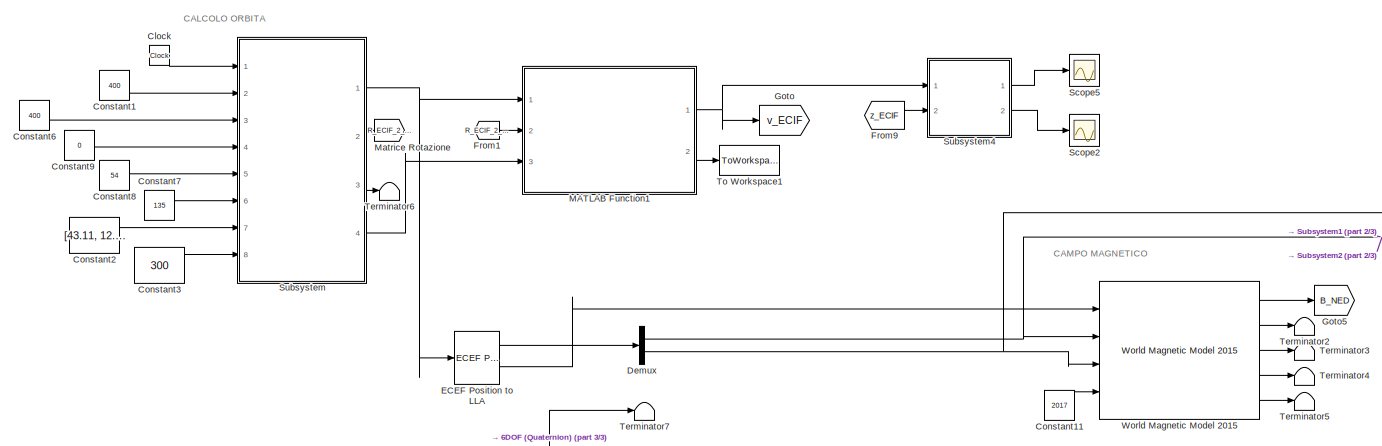
[diagram: root canvas - part 1/3, top center region]
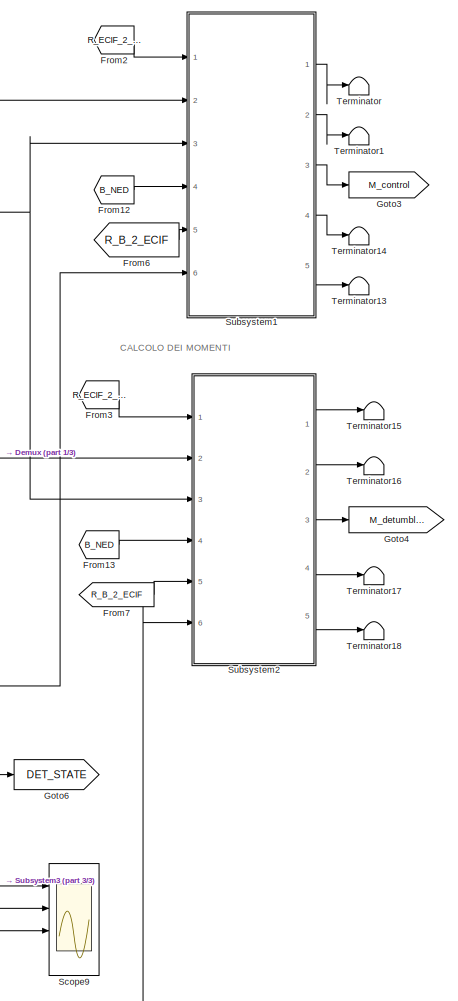
[diagram: root canvas - part 2/3, right side, full height]
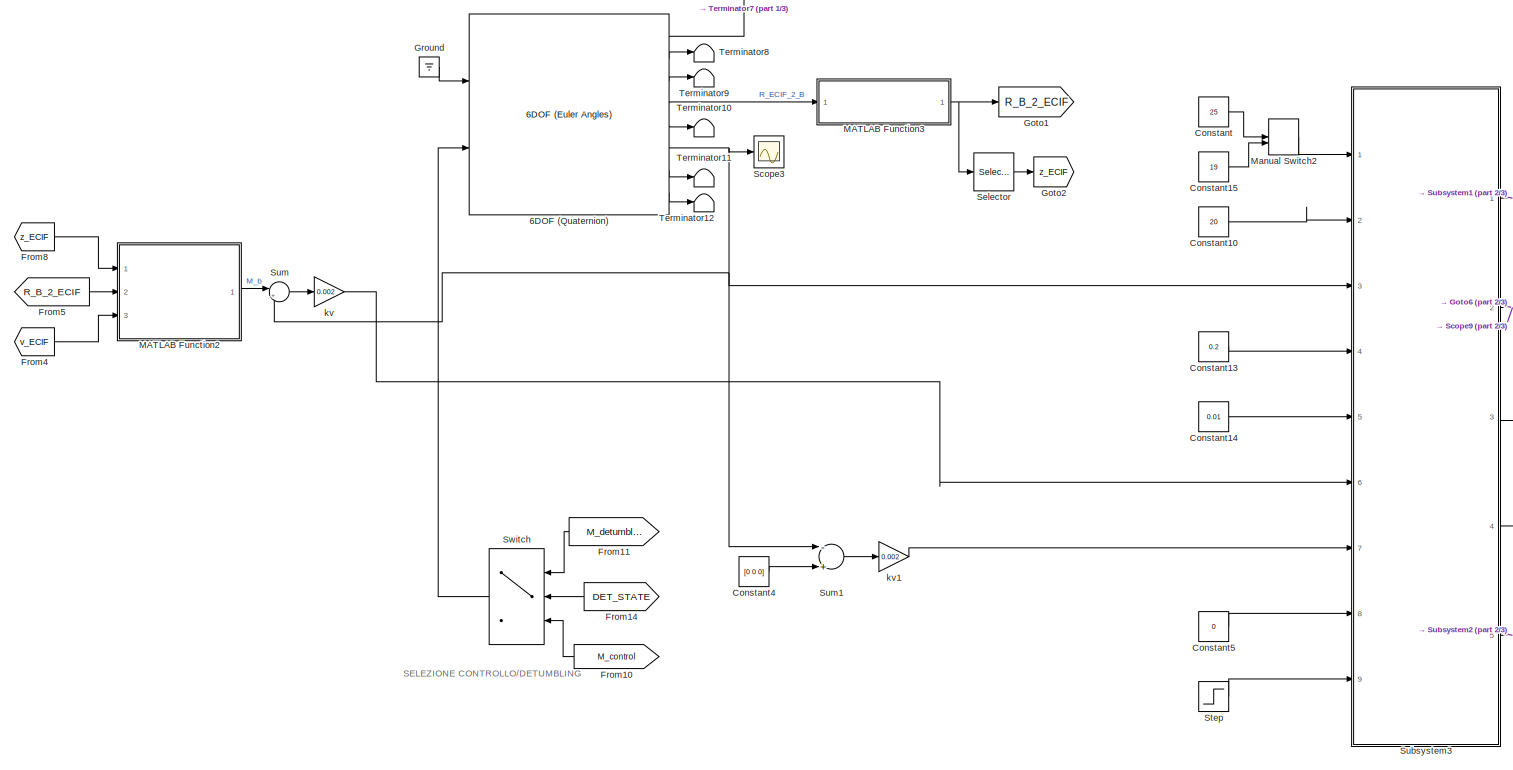
[diagram: root canvas - part 3/3, full width, bottom band]
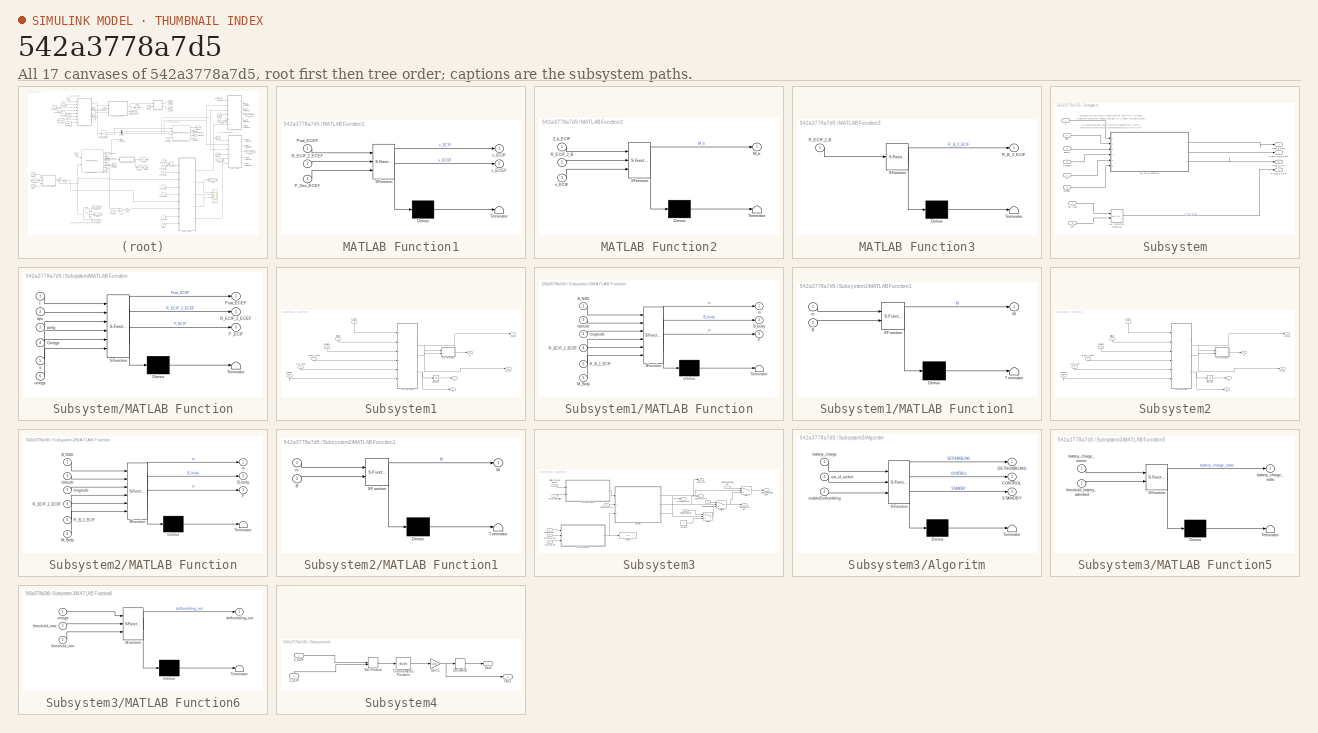
[diagram: thumbnail index - all 17 canvases of the model, root first then tree order]
MODEL slx_542a3778a7d5
KIND model
CONFIG AbsTol = auto
CONFIG FixedStep = auto
CONFIG InitFcn = m = 1.33;\nL = 0.1;\nJxx = m*L^2/12;\nJyy = m*L^2/12;\nJzz = m*L^2/12;\nJ = diag([Jxx, Jyy, Jzz]);\nomega0 = [1 1 1];\n\nphi0=0;\ntheta0=0;\npsi0=0;\n\nR0_ECIF_2_B = eye(3);
CONFIG MaxStep = 1
CONFIG MinStep = auto
CONFIG RelTol = 1e-3
CONFIG SampleTimeConstraint = Unconstrained
CONFIG Solver = ode45
CONFIG SolverMode = Auto
CONFIG SolverName = ode45
CONFIG StartTime = 0.0
CONFIG StopTime = 15000
BLOCK [Reference] 6DOF (Quaternion)  REF=aerolib6dof2/6DOF (Euler Angles)
  Ports = [2, 8]
  SourceBlock = aerolib6dof2/6DOF (Euler Angles)
  SourceType = 6DOF EoM (Body Axis)
  Vm_0 = [0 0 0]
  eul_0 = [0 0 0]
  inertia = J
  inertia_e = eye(3)
  inertia_f = 2*eye(3)
  k_quat = 1
  mass_0 = 1.0
  mass_e = 0.5
  mass_f = 2.0
  mtype = Fixed
  pm_0 = omega0
  rep = Quaternion
  units = Metric (MKS)
  vre_flag = on
  xme_0 = [0 0 0]
BLOCK [Clock] Clock
BLOCK [Constant] Constant
  Value = 25
BLOCK [Constant] Constant1
  Value = 400
BLOCK [Constant] Constant10
  Value = 20
BLOCK [Constant] Constant11
  Value = 2017
BLOCK [Constant] Constant13
  Value = 0.2
BLOCK [Constant] Constant14
  Value = 0.01
BLOCK [Constant] Constant15
  Value = 19
BLOCK [Constant] Constant2
  Value = [43.11, 12.38]
BLOCK [Constant] Constant3
  Value = 300
BLOCK [Constant] Constant4
  Value = [0 0 0]
BLOCK [Constant] Constant5
  Value = 0
BLOCK [Constant] Constant6
  Value = 400
BLOCK [Constant] Constant7
  Value = 135
BLOCK [Constant] Constant8
  Value = 54
BLOCK [Constant] Constant9
  Value = 0
BLOCK [Demux] Demux
  DisplayOption = bar
  Outputs = 2
  Ports = [1, 2]
BLOCK [Reference] ECEF Position to LLA  REF=aerolibtransform2/ECEF Position to LLA
  F = 1/298.257223563
  Ports = [1, 2]
  R = 6378137
  SourceBlock = aerolibtransform2/ECEF Position to LLA
  SourceType = ECEF to LLA
  ptype = Earth (WGS84)
  units = Metric (MKS)
BLOCK [From] From1
  GotoTag = R_ECIF_2_ECEF
BLOCK [From] From10
  GotoTag = M_control
BLOCK [From] From11
  GotoTag = M_detumbling
BLOCK [From] From12
  GotoTag = B_NED
BLOCK [From] From13
  GotoTag = B_NED
BLOCK [From] From14
  GotoTag = DET_STATE
BLOCK [From] From2
  GotoTag = R_ECIF_2_ECEF
BLOCK [From] From3
  GotoTag = R_ECIF_2_ECEF
BLOCK [From] From4
  GotoTag = v_ECIF
BLOCK [From] From5
  GotoTag = R_B_2_ECIF
BLOCK [From] From6
  GotoTag = R_B_2_ECIF
BLOCK [From] From7
  GotoTag = R_B_2_ECIF
BLOCK [From] From8
  GotoTag = z_ECIF
BLOCK [From] From9
  GotoTag = z_ECIF
BLOCK [Goto] Goto
  GotoTag = v_ECIF
BLOCK [Goto] Goto1
  GotoTag = R_B_2_ECIF
BLOCK [Goto] Goto2
  GotoTag = z_ECIF
BLOCK [Goto] Goto3
  GotoTag = M_control
BLOCK [Goto] Goto4
  GotoTag = M_detumbling
BLOCK [Goto] Goto5
  GotoTag = B_NED
BLOCK [Goto] Goto6
  GotoTag = DET_STATE
BLOCK [Ground] Ground
BLOCK [SubSystem] MATLAB Function1
  ErrorFcn = Stateflow.Translate.translate
  PermitHierarchicalResolution = ExplicitOnly
  Ports = [3, 2]
  RequestExecContextInheritance = off
  SFBlockType = MATLAB Function
  TreatAsAtomicUnit = on
BLOCK [Demux] MATLAB Function1/ Demux 
  Outputs = 1
  Ports = [1, 1]
BLOCK [S-Function] MATLAB Function1/ SFunction 
  EnableBusSupport = on
  FunctionName = sf_sfun
  PortCounts = [3 3]
  Ports = [3, 3]
  Tag = Stateflow S-Function Control_Simulation_Final 1
BLOCK [Terminator] MATLAB Function1/ Terminator 
BLOCK [Inport] MATLAB Function1/P_Oss_ECEF
  IconDisplay = Port number
  Port = 3
BLOCK [Inport] MATLAB Function1/Psat_ECEF
  IconDisplay = Port number
BLOCK [Inport] MATLAB Function1/R_ECIF_2_ECEF
  IconDisplay = Port number
  Port = 2
BLOCK [Outport] MATLAB Function1/v_ECEF
  IconDisplay = Port number
  Port = 2
BLOCK [Outport] MATLAB Function1/v_ECIF
  IconDisplay = Port number
BLOCK [SubSystem] MATLAB Function2
  ErrorFcn = Stateflow.Translate.translate
  PermitHierarchicalResolution = ExplicitOnly
  Ports = [3, 1]
  RequestExecContextInheritance = off
  SFBlockType = MATLAB Function
  TreatAsAtomicUnit = on
BLOCK [Demux] MATLAB Function2/ Demux 
  Outputs = 1
  Ports = [1, 1]
BLOCK [S-Function] MATLAB Function2/ SFunction 
  EnableBusSupport = on
  FunctionName = sf_sfun
  PortCounts = [3 2]
  Ports = [3, 2]
  Tag = Stateflow S-Function Control_Simulation_Final 5
BLOCK [Terminator] MATLAB Function2/ Terminator 
BLOCK [Outport] MATLAB Function2/M_b
  IconDisplay = Port number
BLOCK [Inport] MATLAB Function2/R_ECIF_2_B
  IconDisplay = Port number
  Port = 2
BLOCK [Inport] MATLAB Function2/Z_b_ECIF
  IconDisplay = Port number
BLOCK [Inport] MATLAB Function2/v_ECIF
  IconDisplay = Port number
  Port = 3
BLOCK [SubSystem] MATLAB Function3
  ErrorFcn = Stateflow.Translate.translate
  PermitHierarchicalResolution = ExplicitOnly
  Ports = [1, 1]
  RequestExecContextInheritance = off
  SFBlockType = MATLAB Function
  TreatAsAtomicUnit = on
BLOCK [Demux] MATLAB Function3/ Demux 
  Outputs = 1
  Ports = [1, 1]
BLOCK [S-Function] MATLAB Function3/ SFunction 
  EnableBusSupport = on
  FunctionName = sf_sfun
  PortCounts = [1 2]
  Ports = [1, 2]
  Tag = Stateflow S-Function Control_Simulation_Final 3
BLOCK [Terminator] MATLAB Function3/ Terminator 
BLOCK [Outport] MATLAB Function3/R_B_2_ECIF
  IconDisplay = Port number
BLOCK [Inport] MATLAB Function3/R_ECIF_2_B
  IconDisplay = Port number
BLOCK [ManualSwitch] Manual Switch2
BLOCK [Goto] Matrice Rotazione
  GotoTag = R_ECIF_2_ECEF
BLOCK [Scope] Scope2
  Floating = off
  LimitDataPoints = off
  NumInputPorts = 1
  Ports = [1]
  YMax = 14
  YMin = 0
BLOCK [Scope] Scope3
  DataFormat = StructureWithTime
  Floating = off
  LegendLocations = 0.63632     0.83558     0.12372    0.076205
  LimitDataPoints = off
  NumInputPorts = 1
  Ports = [1]
  SaveName = v_ang
  SaveToWorkspace = on
  ShowLegends = on
  YMax = 0.05
  YMin = -0.225
  ZoomMode = xonly
BLOCK [Scope] Scope5
  DataFormat = StructureWithTime
  Floating = off
  LimitDataPoints = off
  NumInputPorts = 1
  Ports = [1]
  SaveName = error_w
  SaveToWorkspace = on
  YMax = 0.0175
  YMin = -0.015
BLOCK [Scope] Scope9
  Floating = off
  LimitDataPoints = off
  NumInputPorts = 4
  Ports = [4]
  SaveName = ScopeData8
  TimeRange = 1.404786680541292
  YMax = 5~5~5~5
  YMin = -5~-5~-5~-5
  ZoomMode = yonly
BLOCK [Selector] Selector
  IndexOptions = Index vector (dialog),Index vector (dialog)
  Indices = [1 2 3],3
  InputPortWidth = 3
  NumberOfDimensions = 2
  OutputSizes = 1,1
  Ports = [1, 1]
BLOCK [Step] Step
  SampleTime = 0
BLOCK [SubSystem] Subsystem
  Ports = [8, 4]
  RequestExecContextInheritance = off
BLOCK [Inport] Subsystem/Ii
  IconDisplay = Port number
  Port = 5
BLOCK [Reference] Subsystem/LLA to ECEF Position  REF=aerolibtransform2/LLA to ECEF Position
  F = 1/298.257223563
  Ports = [2, 1]
  R = 6378137
  SourceBlock = aerolibtransform2/LLA to ECEF Position
  SourceType = LLA to ECEF
  ptype = Earth (WGS84)
  units = Metric (MKS)
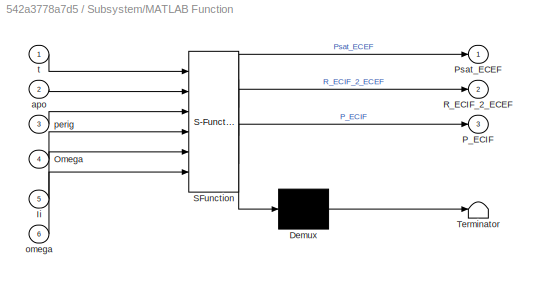
BLOCK [SubSystem] Subsystem/MATLAB Function
  ErrorFcn = Stateflow.Translate.translate
  PermitHierarchicalResolution = ExplicitOnly
  Ports = [6, 3]
  RequestExecContextInheritance = off
  SFBlockType = MATLAB Function
  TreatAsAtomicUnit = on
BLOCK [Demux] Subsystem/MATLAB Function/ Demux 
  Outputs = 1
  Ports = [1, 1]
BLOCK [S-Function] Subsystem/MATLAB Function/ SFunction 
  EnableBusSupport = on
  FunctionName = sf_sfun
  PortCounts = [6 4]
  Ports = [6, 4]
  Tag = Stateflow S-Function Control_Simulation_Final 2
BLOCK [Terminator] Subsystem/MATLAB Function/ Terminator 
BLOCK [Inport] Subsystem/MATLAB Function/Ii
  IconDisplay = Port number
  Port = 5
BLOCK [Inport] Subsystem/MATLAB Function/Omega
  IconDisplay = Port number
  Port = 4
BLOCK [Outport] Subsystem/MATLAB Function/P_ECIF
  IconDisplay = Port number
  Port = 3
BLOCK [Outport] Subsystem/MATLAB Function/Psat_ECEF
  IconDisplay = Port number
BLOCK [Outport] Subsystem/MATLAB Function/R_ECIF_2_ECEF
  IconDisplay = Port number
  Port = 2
BLOCK [Inport] Subsystem/MATLAB Function/apo
  IconDisplay = Port number
  Port = 2
BLOCK [Inport] Subsystem/MATLAB Function/omega
  IconDisplay = Port number
  Port = 6
BLOCK [Inport] Subsystem/MATLAB Function/perig
  IconDisplay = Port number
  Port = 3
BLOCK [Inport] Subsystem/MATLAB Function/t
  IconDisplay = Port number
BLOCK [Inport] Subsystem/Omega
  IconDisplay = Port number
  Port = 4
BLOCK [Outport] Subsystem/P_Oss_ECEF
  IconDisplay = Port number
  Port = 4
BLOCK [Outport] Subsystem/Psat_ECEF
  IconDisplay = Port number
BLOCK [Outport] Subsystem/Psat_ECIF
  IconDisplay = Port number
  Port = 3
BLOCK [Outport] Subsystem/R_ECIF_2_ECEF
  IconDisplay = Port number
  Port = 2
BLOCK [Inport] Subsystem/alt
  IconDisplay = Port number
  Port = 8
BLOCK [Inport] Subsystem/apo
  IconDisplay = Port number
  Port = 2
BLOCK [Inport] Subsystem/lat, long
  IconDisplay = Port number
  Port = 7
BLOCK [Inport] Subsystem/omega
  IconDisplay = Port number
  Port = 6
BLOCK [Inport] Subsystem/perig
  IconDisplay = Port number
  Port = 3
BLOCK [Inport] Subsystem/t
  IconDisplay = Port number
BLOCK [SubSystem] Subsystem1
  Ports = [6, 5]
  RequestExecContextInheritance = off
BLOCK [Inport] Subsystem1/B_NED
  IconDisplay = Port number
  Port = 4
BLOCK [Outport] Subsystem1/B_body
  IconDisplay = Port number
  Port = 2
BLOCK [Outport] Subsystem1/E
  IconDisplay = Port number
  Port = 4
BLOCK [Integrator] Subsystem1/Integrator
  Ports = [1, 1]
BLOCK [Outport] Subsystem1/M
  IconDisplay = Port number
  Port = 3
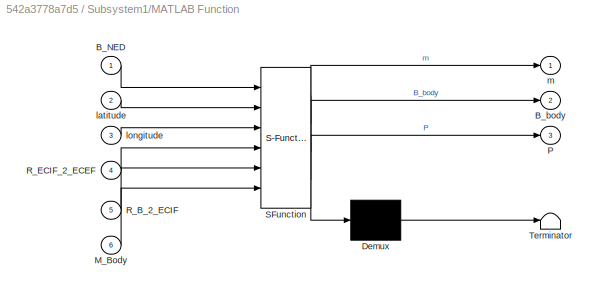
BLOCK [SubSystem] Subsystem1/MATLAB Function
  ErrorFcn = Stateflow.Translate.translate
  PermitHierarchicalResolution = ExplicitOnly
  Ports = [6, 3]
  RequestExecContextInheritance = off
  SFBlockType = MATLAB Function
  TreatAsAtomicUnit = on
BLOCK [Demux] Subsystem1/MATLAB Function/ Demux 
  Outputs = 1
  Ports = [1, 1]
BLOCK [S-Function] Subsystem1/MATLAB Function/ SFunction 
  EnableBusSupport = on
  FunctionName = sf_sfun
  PortCounts = [6 4]
  Ports = [6, 4]
  Tag = Stateflow S-Function Control_Simulation_Final 6
BLOCK [Terminator] Subsystem1/MATLAB Function/ Terminator 
BLOCK [Inport] Subsystem1/MATLAB Function/B_NED
  IconDisplay = Port number
BLOCK [Outport] Subsystem1/MATLAB Function/B_body
  IconDisplay = Port number
  Port = 2
BLOCK [Inport] Subsystem1/MATLAB Function/M_Body
  IconDisplay = Port number
  Port = 6
BLOCK [Outport] Subsystem1/MATLAB Function/P
  IconDisplay = Port number
  Port = 3
BLOCK [Inport] Subsystem1/MATLAB Function/R_B_2_ECIF
  IconDisplay = Port number
  Port = 5
BLOCK [Inport] Subsystem1/MATLAB Function/R_ECIF_2_ECEF
  IconDisplay = Port number
  Port = 4
BLOCK [Inport] Subsystem1/MATLAB Function/latitude
  IconDisplay = Port number
  Port = 2
BLOCK [Inport] Subsystem1/MATLAB Function/longitude
  IconDisplay = Port number
  Port = 3
BLOCK [Outport] Subsystem1/MATLAB Function/m
  IconDisplay = Port number
BLOCK [SubSystem] Subsystem1/MATLAB Function1
  ErrorFcn = Stateflow.Translate.translate
  PermitHierarchicalResolution = ExplicitOnly
  Ports = [2, 1]
  RequestExecContextInheritance = off
  SFBlockType = MATLAB Function
  TreatAsAtomicUnit = on
BLOCK [Demux] Subsystem1/MATLAB Function1/ Demux 
  Outputs = 1
  Ports = [1, 1]
BLOCK [S-Function] Subsystem1/MATLAB Function1/ SFunction 
  EnableBusSupport = on
  FunctionName = sf_sfun
  PortCounts = [2 2]
  Ports = [2, 2]
  Tag = Stateflow S-Function Control_Simulation_Final 7
BLOCK [Terminator] Subsystem1/MATLAB Function1/ Terminator 
BLOCK [Inport] Subsystem1/MATLAB Function1/B
  IconDisplay = Port number
  Port = 2
BLOCK [Outport] Subsystem1/MATLAB Function1/M
  IconDisplay = Port number
BLOCK [Inport] Subsystem1/MATLAB Function1/m
  IconDisplay = Port number
BLOCK [Inport] Subsystem1/M_BODY
  IconDisplay = Port number
  Port = 6
BLOCK [Outport] Subsystem1/P 
  IconDisplay = Port number
  Port = 5
BLOCK [Inport] Subsystem1/R_B_2_ECIF
  IconDisplay = Port number
  Port = 5
BLOCK [Inport] Subsystem1/R_ECIF_2_ECEF
  IconDisplay = Port number
BLOCK [Inport] Subsystem1/latitude
  IconDisplay = Port number
  Port = 2
BLOCK [Inport] Subsystem1/longitude
  IconDisplay = Port number
  Port = 3
BLOCK [Outport] Subsystem1/m_body
  IconDisplay = Port number
BLOCK [SubSystem] Subsystem2
  Ports = [6, 5]
  RequestExecContextInheritance = off
BLOCK [Inport] Subsystem2/B_NED
  IconDisplay = Port number
  Port = 4
BLOCK [Outport] Subsystem2/B_body
  IconDisplay = Port number
  Port = 2
BLOCK [Outport] Subsystem2/E
  IconDisplay = Port number
  Port = 4
BLOCK [Integrator] Subsystem2/Integrator
  Ports = [1, 1]
BLOCK [Outport] Subsystem2/M
  IconDisplay = Port number
  Port = 3
BLOCK [SubSystem] Subsystem2/MATLAB Function
  ErrorFcn = Stateflow.Translate.translate
  PermitHierarchicalResolution = ExplicitOnly
  Ports = [6, 3]
  RequestExecContextInheritance = off
  SFBlockType = MATLAB Function
  TreatAsAtomicUnit = on
BLOCK [Demux] Subsystem2/MATLAB Function/ Demux 
  Outputs = 1
  Ports = [1, 1]
BLOCK [S-Function] Subsystem2/MATLAB Function/ SFunction 
  EnableBusSupport = on
  FunctionName = sf_sfun
  PortCounts = [6 4]
  Ports = [6, 4]
  Tag = Stateflow S-Function Control_Simulation_Final 4
BLOCK [Terminator] Subsystem2/MATLAB Function/ Terminator 
BLOCK [Inport] Subsystem2/MATLAB Function/B_NED
  IconDisplay = Port number
BLOCK [Outport] Subsystem2/MATLAB Function/B_body
  IconDisplay = Port number
  Port = 2
BLOCK [Inport] Subsystem2/MATLAB Function/M_Body
  IconDisplay = Port number
  Port = 6
BLOCK [Outport] Subsystem2/MATLAB Function/P
  IconDisplay = Port number
  Port = 3
BLOCK [Inport] Subsystem2/MATLAB Function/R_B_2_ECIF
  IconDisplay = Port number
  Port = 5
BLOCK [Inport] Subsystem2/MATLAB Function/R_ECIF_2_ECEF
  IconDisplay = Port number
  Port = 4
BLOCK [Inport] Subsystem2/MATLAB Function/latitude
  IconDisplay = Port number
  Port = 2
BLOCK [Inport] Subsystem2/MATLAB Function/longitude
  IconDisplay = Port number
  Port = 3
BLOCK [Outport] Subsystem2/MATLAB Function/m
  IconDisplay = Port number
BLOCK [SubSystem] Subsystem2/MATLAB Function1
  ErrorFcn = Stateflow.Translate.translate
  PermitHierarchicalResolution = ExplicitOnly
  Ports = [2, 1]
  RequestExecContextInheritance = off
  SFBlockType = MATLAB Function
  TreatAsAtomicUnit = on
BLOCK [Demux] Subsystem2/MATLAB Function1/ Demux 
  Outputs = 1
  Ports = [1, 1]
BLOCK [S-Function] Subsystem2/MATLAB Function1/ SFunction 
  EnableBusSupport = on
  FunctionName = sf_sfun
  PortCounts = [2 2]
  Ports = [2, 2]
  Tag = Stateflow S-Function Control_Simulation_Final 8
BLOCK [Terminator] Subsystem2/MATLAB Function1/ Terminator 
BLOCK [Inport] Subsystem2/MATLAB Function1/B
  IconDisplay = Port number
  Port = 2
BLOCK [Outport] Subsystem2/MATLAB Function1/M
  IconDisplay = Port number
BLOCK [Inport] Subsystem2/MATLAB Function1/m
  IconDisplay = Port number
BLOCK [Inport] Subsystem2/M_BODY
  IconDisplay = Port number
  Port = 6
BLOCK [Outport] Subsystem2/P 
  IconDisplay = Port number
  Port = 5
BLOCK [Inport] Subsystem2/R_B_2_ECIF
  IconDisplay = Port number
  Port = 5
BLOCK [Inport] Subsystem2/R_ECIF_2_ECEF
  IconDisplay = Port number
BLOCK [Inport] Subsystem2/latitude
  IconDisplay = Port number
  Port = 2
BLOCK [Inport] Subsystem2/longitude
  IconDisplay = Port number
  Port = 3
BLOCK [Outport] Subsystem2/m_body
  IconDisplay = Port number
BLOCK [SubSystem] Subsystem3
  Ports = [9, 5]
  RequestExecContextInheritance = off
BLOCK [SubSystem] Subsystem3/Algoritm
  ErrorFcn = Stateflow.Translate.translate
  PermitHierarchicalResolution = ExplicitOnly
  Ports = [3, 3]
  RequestExecContextInheritance = off
  SFBlockType = Chart
  TreatAsAtomicUnit = on
BLOCK [Demux] Subsystem3/Algoritm/ Demux 
  Outputs = 1
  Ports = [1, 1]
BLOCK [S-Function] Subsystem3/Algoritm/ SFunction 
  EnableBusSupport = on
  FunctionName = sf_sfun
  PortCounts = [3 4]
  Ports = [3, 4]
  Tag = Stateflow S-Function Control_Simulation_Final 10
BLOCK [Terminator] Subsystem3/Algoritm/ Terminator 
BLOCK [Outport] Subsystem3/Algoritm/CONTROL
  IconDisplay = Port number
  Port = 2
BLOCK [Outport] Subsystem3/Algoritm/DETHUMBLING
  IconDisplay = Port number
BLOCK [Outport] Subsystem3/Algoritm/STANDBY
  IconDisplay = Port number
  Port = 3
BLOCK [Inport] Subsystem3/Algoritm/battery_charge
  IconDisplay = Port number
BLOCK [Inport] Subsystem3/Algoritm/enableDethumbling
  IconDisplay = Port number
  Port = 3
BLOCK [Inport] Subsystem3/Algoritm/out_of_rocket
  IconDisplay = Port number
  Port = 2
BLOCK [Inport] Subsystem3/Battery Charge Sensor
  IconDisplay = Port number
BLOCK [Outport] Subsystem3/CONTROL STATE
  IconDisplay = Port number
  Port = 3
BLOCK [Constant] Subsystem3/Constant
  Value = 0
BLOCK [Outport] Subsystem3/DET STATE
  IconDisplay = Port number
  Port = 2
BLOCK [Display] Subsystem3/Display
  Decimation = 1
  Ports = [1]
BLOCK [SubSystem] Subsystem3/MATLAB Function5
  ErrorFcn = Stateflow.Translate.translate
  PermitHierarchicalResolution = ExplicitOnly
  Ports = [2, 1]
  RequestExecContextInheritance = off
  SFBlockType = MATLAB Function
  TreatAsAtomicUnit = on
BLOCK [Demux] Subsystem3/MATLAB Function5/ Demux 
  Outputs = 1
  Ports = [1, 1]
BLOCK [S-Function] Subsystem3/MATLAB Function5/ SFunction 
  EnableBusSupport = on
  FunctionName = sf_sfun
  PortCounts = [2 2]
  Ports = [2, 2]
  Tag = Stateflow S-Function Control_Simulation_Final 11
BLOCK [Terminator] Subsystem3/MATLAB Function5/ Terminator 
BLOCK [Inport] Subsystem3/MATLAB Function5/battery_charge_sersor
  IconDisplay = Port number
BLOCK [Outport] Subsystem3/MATLAB Function5/battery_charge_state
  IconDisplay = Port number
BLOCK [Inport] Subsystem3/MATLAB Function5/threshold_battery_admitted
  IconDisplay = Port number
  Port = 2
BLOCK [SubSystem] Subsystem3/MATLAB Function6
  ErrorFcn = Stateflow.Translate.translate
  PermitHierarchicalResolution = ExplicitOnly
  Ports = [3, 1]
  RequestExecContextInheritance = off
  SFBlockType = MATLAB Function
  TreatAsAtomicUnit = on
BLOCK [Demux] Subsystem3/MATLAB Function6/ Demux 
  Outputs = 1
  Ports = [1, 1]
BLOCK [S-Function] Subsystem3/MATLAB Function6/ SFunction 
  EnableBusSupport = on
  FunctionName = sf_sfun
  PortCounts = [3 2]
  Ports = [3, 2]
  Tag = Stateflow S-Function Control_Simulation_Final 12
BLOCK [Terminator] Subsystem3/MATLAB Function6/ Terminator 
BLOCK [Outport] Subsystem3/MATLAB Function6/dethumbling_out
  IconDisplay = Port number
BLOCK [Inport] Subsystem3/MATLAB Function6/omega
  IconDisplay = Port number
BLOCK [Inport] Subsystem3/MATLAB Function6/threshold_max
  IconDisplay = Port number
  Port = 2
BLOCK [Inport] Subsystem3/MATLAB Function6/threshold_min
  IconDisplay = Port number
  Port = 3
BLOCK [Inport] Subsystem3/Omega Actual
  IconDisplay = Port number
  Port = 3
BLOCK [Inport] Subsystem3/Omega Control IN
  IconDisplay = Port number
  Port = 6
BLOCK [Outport] Subsystem3/Omega Control OUT
  IconDisplay = Port number
BLOCK [Inport] Subsystem3/Omega Dethumbling IN
  IconDisplay = Port number
  Port = 7
BLOCK [Outport] Subsystem3/Omega Dethumbling OUT
  IconDisplay = Port number
  Port = 5
BLOCK [Inport] Subsystem3/Out Rocket Sensor
  IconDisplay = Port number
  Port = 9
BLOCK [Outport] Subsystem3/STANDBY STATE
  IconDisplay = Port number
  Port = 4
BLOCK [Inport] Subsystem3/Set Omega Stanby
  IconDisplay = Port number
  Port = 8
BLOCK [Switch] Subsystem3/Switch4
  Criteria = u2 > Threshold
  InputSameDT = off
  SaturateOnIntegerOverflow = off
BLOCK [Switch] Subsystem3/Switch5
  Criteria = u2 > Threshold
  InputSameDT = off
  SaturateOnIntegerOverflow = off
BLOCK [Switch] Subsystem3/Switch6
  Criteria = u2 > Threshold
  InputSameDT = off
  SaturateOnIntegerOverflow = off
BLOCK [Inport] Subsystem3/Threshold Admitted
  IconDisplay = Port number
  Port = 2
BLOCK [Inport] Subsystem3/Threshold_max
  IconDisplay = Port number
  Port = 4
BLOCK [Inport] Subsystem3/Threshold_min
  IconDisplay = Port number
  Port = 5
BLOCK [SubSystem] Subsystem4
  Ports = [2, 2]
  RequestExecContextInheritance = off
BLOCK [Derivative] Subsystem4/Derivative
BLOCK [DotProduct] Subsystem4/Dot Product
  OutDataTypeStr = Inherit: Inherit via internal rule
BLOCK [Gain] Subsystem4/Gain1
  Gain = 180/pi
  OutDataTypeStr = Inherit: Inherit via internal rule
  ParamDataTypeStr = Inherit: Inherit via internal rule
  SaturateOnIntegerOverflow = off
BLOCK [Outport] Subsystem4/Out1
  IconDisplay = Port number
BLOCK [Outport] Subsystem4/Out2
  IconDisplay = Port number
  Port = 2
BLOCK [Trigonometry] Subsystem4/Trigonometric Function
  Operator = acos
  Ports = [1, 1]
BLOCK [Inport] Subsystem4/v_ECIF
  IconDisplay = Port number
BLOCK [Inport] Subsystem4/z_ECIF
  IconDisplay = Port number
  Port = 2
BLOCK [Sum] Sum
  IconShape = round
  InputSameDT = off
  Inputs = |+-
  OutDataTypeStr = Inherit: Inherit via internal rule
  Ports = [2, 1]
  SaturateOnIntegerOverflow = off
BLOCK [Sum] Sum1
  InputSameDT = off
  Inputs = -+
  OutDataTypeStr = Inherit: Inherit via internal rule
  Ports = [2, 1]
  SaturateOnIntegerOverflow = off
BLOCK [Switch] Switch
  Criteria = u2 > Threshold
  InputSameDT = off
  SaturateOnIntegerOverflow = off
  Threshold = 0.5
BLOCK [Terminator] Terminator
BLOCK [Terminator] Terminator1
BLOCK [Terminator] Terminator10
BLOCK [Terminator] Terminator11
BLOCK [Terminator] Terminator12
BLOCK [Terminator] Terminator13
BLOCK [Terminator] Terminator14
BLOCK [Terminator] Terminator15
BLOCK [Terminator] Terminator16
BLOCK [Terminator] Terminator17
BLOCK [Terminator] Terminator18
BLOCK [Terminator] Terminator2
BLOCK [Terminator] Terminator3
BLOCK [Terminator] Terminator4
BLOCK [Terminator] Terminator5
BLOCK [Terminator] Terminator6
BLOCK [Terminator] Terminator7
BLOCK [Terminator] Terminator8
BLOCK [Terminator] Terminator9
BLOCK [ToWorkspace] To Workspace1
  FixptAsFi = on
  MaxDataPoints = inf
  Ports = [1]
  SampleTime = -1
  Save2DSignal = 3-D array (concatenate along third dimension)
  SaveFormat = Structure With Time
  VariableName = Psat_ECEF
BLOCK [Reference] World Magnetic Model 2015  REF=aerolibgravity2/World Magnetic Model 2015
  Ports = [4, 5]
  SourceBlock = aerolibgravity2/World Magnetic Model 2015
  SourceType = WorldMagneticModel2015
  action = Error
  day = 1
  dec_out = on
  h_out = on
  inc_out = on
  month = January
  ti_out = on
  time_in = on
  units = Metric (MKS)
  year = 2015
BLOCK [Gain] kv
  Gain = 0.002
  OutDataTypeStr = Inherit: Inherit via internal rule
  ParamDataTypeStr = Inherit: Inherit via internal rule
  SaturateOnIntegerOverflow = off
BLOCK [Gain] kv1
  Gain = 0.002
  OutDataTypeStr = Inherit: Inherit via internal rule
  ParamDataTypeStr = Inherit: Inherit via internal rule
  SaturateOnIntegerOverflow = off
ANNOTATION (root): CALCOLO DEI MOMENTI
ANNOTATION (root): CALCOLO ORBITA
ANNOTATION (root): CAMPO MAGNETICO
ANNOTATION (root): SELEZIONE CONTROLLO/DETUMBLING
ANNOTATION Subsystem: Funzione che restiruisce la posizione del satellite in un dato istante di tempo noti apogeo, perigeo, e i 3 angoli che definiscono la trasformazione rispetto all'orbita equatoriale, inoltre restitusce la matrice di trasformazione da ECIF a ECEF
LINE 6DOF (Quaternion):1 -> Terminator7:1
LINE 6DOF (Quaternion):2 -> Terminator8:1
LINE 6DOF (Quaternion):3 -> Terminator9:1
LINE 6DOF (Quaternion):4 -> MATLAB Function3:1
LINE 6DOF (Quaternion):5 -> Terminator10:1
NET 6DOF (Quaternion):6 -> Scope3:1, Subsystem3:3, Sum1:1, Sum:2
LINE 6DOF (Quaternion):7 -> Terminator11:1
LINE 6DOF (Quaternion):8 -> Terminator12:1
LINE Clock:1 -> Subsystem:1
LINE Constant10:1 -> Subsystem3:2
LINE Constant11:1 -> World Magnetic Model 2015:4
LINE Constant13:1 -> Subsystem3:4
LINE Constant14:1 -> Subsystem3:5
LINE Constant15:1 -> Manual Switch2:2
LINE Constant1:1 -> Subsystem:2
LINE Constant2:1 -> Subsystem:7
LINE Constant3:1 -> Subsystem:8
LINE Constant4:1 -> Sum1:2
LINE Constant5:1 -> Subsystem3:8
LINE Constant6:1 -> Subsystem:3
LINE Constant7:1 -> Subsystem:6
LINE Constant8:1 -> Subsystem:5
LINE Constant9:1 -> Subsystem:4
LINE Constant:1 -> Manual Switch2:1
NET Demux:1 -> Subsystem1:2, Subsystem2:2, World Magnetic Model 2015:2
NET Demux:2 -> Subsystem1:3, Subsystem2:3, World Magnetic Model 2015:3
LINE ECEF Position to LLA:1 -> Demux:1
LINE ECEF Position to LLA:2 -> World Magnetic Model 2015:1
LINE From10:1 -> Switch:3
LINE From11:1 -> Switch:1
LINE From12:1 -> Subsystem1:4
LINE From13:1 -> Subsystem2:4
LINE From14:1 -> Switch:2
LINE From1:1 -> MATLAB Function1:2
LINE From2:1 -> Subsystem1:1
LINE From3:1 -> Subsystem2:1
LINE From4:1 -> MATLAB Function2:3
LINE From5:1 -> MATLAB Function2:2
LINE From6:1 -> Subsystem1:5
LINE From7:1 -> Subsystem2:5
LINE From8:1 -> MATLAB Function2:1
LINE From9:1 -> Subsystem4:2
LINE Ground:1 -> 6DOF (Quaternion):1
NET MATLAB Function1:1 -> Goto:1, Subsystem4:1
LINE MATLAB Function1:2 -> To Workspace1:1
LINE MATLAB Function2:1 -> Sum:1
NET MATLAB Function3:1 -> Goto1:1, Selector:1
LINE Manual Switch2:1 -> Subsystem3:1
LINE Selector:1 -> Goto2:1
LINE Step:1 -> Subsystem3:9
LINE Subsystem/Ii:1 -> Subsystem/MATLAB Function:5
LINE Subsystem/LLA to ECEF Position:1 -> Subsystem/P_Oss_ECEF:1
LINE Subsystem/MATLAB Function:1 -> Subsystem/Psat_ECEF:1
LINE Subsystem/MATLAB Function:2 -> Subsystem/R_ECIF_2_ECEF:1
LINE Subsystem/MATLAB Function:3 -> Subsystem/Psat_ECIF:1
LINE Subsystem/Omega:1 -> Subsystem/MATLAB Function:4
LINE Subsystem/alt:1 -> Subsystem/LLA to ECEF Position:2
LINE Subsystem/apo:1 -> Subsystem/MATLAB Function:2
LINE Subsystem/lat, long:1 -> Subsystem/LLA to ECEF Position:1
LINE Subsystem/omega:1 -> Subsystem/MATLAB Function:6
LINE Subsystem/perig:1 -> Subsystem/MATLAB Function:3
LINE Subsystem/t:1 -> Subsystem/MATLAB Function:1
LINE Subsystem1/B_NED:1 -> Subsystem1/MATLAB Function:1
LINE Subsystem1/Integrator:1 -> Subsystem1/E:1
LINE Subsystem1/MATLAB Function1:1 -> Subsystem1/M:1
NET Subsystem1/MATLAB Function:1 -> Subsystem1/MATLAB Function1:1, Subsystem1/m_body:1
NET Subsystem1/MATLAB Function:2 -> Subsystem1/B_body:1, Subsystem1/MATLAB Function1:2
NET Subsystem1/MATLAB Function:3 -> Subsystem1/Integrator:1, Subsystem1/P :1
LINE Subsystem1/M_BODY:1 -> Subsystem1/MATLAB Function:6
LINE Subsystem1/R_B_2_ECIF:1 -> Subsystem1/MATLAB Function:5
LINE Subsystem1/R_ECIF_2_ECEF:1 -> Subsystem1/MATLAB Function:4
LINE Subsystem1/latitude:1 -> Subsystem1/MATLAB Function:2
LINE Subsystem1/longitude:1 -> Subsystem1/MATLAB Function:3
LINE Subsystem1:1 -> Terminator:1
LINE Subsystem1:2 -> Terminator1:1
LINE Subsystem1:3 -> Goto3:1
LINE Subsystem1:4 -> Terminator14:1
LINE Subsystem1:5 -> Terminator13:1
LINE Subsystem2/B_NED:1 -> Subsystem2/MATLAB Function:1
LINE Subsystem2/Integrator:1 -> Subsystem2/E:1
LINE Subsystem2/MATLAB Function1:1 -> Subsystem2/M:1
NET Subsystem2/MATLAB Function:1 -> Subsystem2/MATLAB Function1:1, Subsystem2/m_body:1
NET Subsystem2/MATLAB Function:2 -> Subsystem2/B_body:1, Subsystem2/MATLAB Function1:2
NET Subsystem2/MATLAB Function:3 -> Subsystem2/Integrator:1, Subsystem2/P :1
LINE Subsystem2/M_BODY:1 -> Subsystem2/MATLAB Function:6
LINE Subsystem2/R_B_2_ECIF:1 -> Subsystem2/MATLAB Function:5
LINE Subsystem2/R_ECIF_2_ECEF:1 -> Subsystem2/MATLAB Function:4
LINE Subsystem2/latitude:1 -> Subsystem2/MATLAB Function:2
LINE Subsystem2/longitude:1 -> Subsystem2/MATLAB Function:3
LINE Subsystem2:1 -> Terminator15:1
LINE Subsystem2:2 -> Terminator16:1
LINE Subsystem2:3 -> Goto4:1
LINE Subsystem2:4 -> Terminator17:1
LINE Subsystem2:5 -> Terminator18:1
NET Subsystem3/Algoritm:1 -> Subsystem3/DET STATE:1, Subsystem3/Switch4:2
NET Subsystem3/Algoritm:2 -> Subsystem3/CONTROL STATE:1, Subsystem3/Switch5:2
NET Subsystem3/Algoritm:3 -> Subsystem3/STANDBY STATE:1, Subsystem3/Switch6:2
LINE Subsystem3/Battery Charge Sensor:1 -> Subsystem3/MATLAB Function5:1
LINE Subsystem3/Constant:1 -> Subsystem3/Switch6:3
LINE Subsystem3/MATLAB Function5:1 -> Subsystem3/Algoritm:1
NET Subsystem3/MATLAB Function6:1 -> Subsystem3/Algoritm:3, Subsystem3/Display:1
LINE Subsystem3/Omega Actual:1 -> Subsystem3/MATLAB Function6:1
LINE Subsystem3/Omega Control IN:1 -> Subsystem3/Switch5:1
LINE Subsystem3/Omega Dethumbling IN:1 -> Subsystem3/Switch4:1
LINE Subsystem3/Out Rocket Sensor:1 -> Subsystem3/Algoritm:2
LINE Subsystem3/Set Omega Stanby:1 -> Subsystem3/Switch6:1
LINE Subsystem3/Switch4:1 -> Subsystem3/Omega Dethumbling OUT:1
NET Subsystem3/Switch5:1 -> Subsystem3/Omega Control OUT:1, Subsystem3/Switch4:3
LINE Subsystem3/Switch6:1 -> Subsystem3/Switch5:3
LINE Subsystem3/Threshold Admitted:1 -> Subsystem3/MATLAB Function5:2
LINE Subsystem3/Threshold_max:1 -> Subsystem3/MATLAB Function6:2
LINE Subsystem3/Threshold_min:1 -> Subsystem3/MATLAB Function6:3
LINE Subsystem3:1 -> Subsystem1:6
NET Subsystem3:2 -> Goto6:1, Scope9:1
LINE Subsystem3:3 -> Scope9:2
LINE Subsystem3:4 -> Scope9:3
LINE Subsystem3:5 -> Subsystem2:6
LINE Subsystem4/Derivative:1 -> Subsystem4/Out1:1
LINE Subsystem4/Dot Product:1 -> Subsystem4/Trigonometric Function:1
NET Subsystem4/Gain1:1 -> Subsystem4/Derivative:1, Subsystem4/Out2:1
LINE Subsystem4/Trigonometric Function:1 -> Subsystem4/Gain1:1
LINE Subsystem4/v_ECIF:1 -> Subsystem4/Dot Product:1
LINE Subsystem4/z_ECIF:1 -> Subsystem4/Dot Product:2
LINE Subsystem4:1 -> Scope5:1
LINE Subsystem4:2 -> Scope2:1
NET Subsystem:1 -> ECEF Position to LLA:1, MATLAB Function1:1
LINE Subsystem:2 -> Matrice Rotazione:1
LINE Subsystem:3 -> Terminator6:1
LINE Subsystem:4 -> MATLAB Function1:3
LINE Sum1:1 -> kv1:1
LINE Sum:1 -> kv:1
LINE Switch:1 -> 6DOF (Quaternion):2
LINE World Magnetic Model 2015:1 -> Goto5:1
LINE World Magnetic Model 2015:2 -> Terminator2:1
LINE World Magnetic Model 2015:3 -> Terminator3:1
LINE World Magnetic Model 2015:4 -> Terminator4:1
LINE World Magnetic Model 2015:5 -> Terminator5:1
LINE kv1:1 -> Subsystem3:7
LINE kv:1 -> Subsystem3:6
note: NET lines group one-source signal fan-out (src -> all destinations, sorted); 1:1 wires keep LINE
CHART MATLAB Function1 states=1 transitions=1
  STATE_LABEL 'eML_blk_kernel()'
  STATE_LABEL 'SCRIPT:\nfunction [v_ECIF,v_ECEF] = fcn(Psat_ECEF, R_ECIF_2_ECEF, P_Oss_ECEF)\n\nP_Os = P_Oss_ECEF - Psat_ECEF;\nv_ECEF = P_Os/norm(P_Os);\nv_ECIF = R_ECIF_2_ECEF*v_ECEF;'
CHART Subsystem/MATLAB Function states=1 transitions=1
  STATE_LABEL 'eML_blk_kernel()'
  STATE_LABEL "SCRIPT:\nfunction [Psat_ECEF, R_ECIF_2_ECEF, P_ECIF] = orbita_riferimento(t,apo,perig,Omega,Ii,omega)\n\n% Restituisce in coordinate ECEF la posizione del satellite in funzione\n% dell'orbita desiderata, che viene calcolata con i parametri in ingresso:\n% \n% IN:\n%   t: tempo, in secondi\n%   apo: apogeo dell'orbita\n%   perig: perigeo dell'orbita\n%   Omega: longitudine del nodo ascendente\n%   Ii: inclina...<+1127ch>"
CHART MATLAB Function3 states=1 transitions=1
  STATE_LABEL 'eML_blk_kernel()'
  STATE_LABEL "SCRIPT:\nfunction R_B_2_ECIF = fcn(R_ECIF_2_B)\n%#codegen\nR_B_2_ECIF = R_ECIF_2_B';"
CHART Subsystem2/MATLAB Function states=1 transitions=1
  STATE_LABEL 'eML_blk_kernel()'
  STATE_LABEL 'SCRIPT:\nfunction [m, B_body, P] = fcn(B_NED, latitude, longitude, R_ECIF_2_ECEF, R_B_2_ECIF, M_Body)\n%#codegen\nlambda = latitude;\ntheta = longitude;\nsla=sin(lambda);\ncla=cos(lambda);\nsth=sin(theta);\ncth=cos(theta);\n\n%R_ECEF_2_NED = [-sin(lambda)*cos(theta), -sin(lambda)*sin(theta), cos(lambda);\n%                -sin(theta), cos(theta), 0;\n%                -cos(lambda)*cos(theta), -cos(lambda)*sin(...<+1149ch>'
CHART MATLAB Function2 states=1 transitions=1
  STATE_LABEL 'eML_blk_kernel()'
  STATE_LABEL 'SCRIPT:\nfunction M_b = fcn(Z_b_ECIF, R_ECIF_2_B, v_ECIF)\n\nk=0.05;\n% in questa funzione definiamo il momento da applicare come il prodotto\n% scalare tra i due assi da allineare (a meno del fattore di guadagno che \n% aggiusta le grandezze), infatti il prodotto scalare è quella funzione che\n% "porta" il vettore Z_b_ECIF sul vettore v_ECIF, moltiplicando il tutto\n% per la trasposta della matrice R_ECI...<+99ch>'
CHART Subsystem1/MATLAB Function states=1 transitions=1
  STATE_LABEL 'eML_blk_kernel()'
  STATE_LABEL 'SCRIPT:\nfunction [m, B_body, P] = fcn(B_NED, latitude, longitude, R_ECIF_2_ECEF, R_B_2_ECIF, M_Body)\n%#codegen\nlambda = latitude;\ntheta = longitude;\nsla=sin(lambda);\ncla=cos(lambda);\nsth=sin(theta);\ncth=cos(theta);\n\n%R_ECEF_2_NED = [-sin(lambda)*cos(theta), -sin(lambda)*sin(theta), cos(lambda);\n%                -sin(theta), cos(theta), 0;\n%                -cos(lambda)*cos(theta), -cos(lambda)*sin(...<+1097ch>'
CHART Subsystem1/MATLAB Function1 states=1 transitions=1
  STATE_LABEL 'eML_blk_kernel()'
  STATE_LABEL 'SCRIPT:\nfunction M = fcn(m, B)\n\nM = -cross(m, B);'
CHART Subsystem2/MATLAB Function1 states=1 transitions=1
  STATE_LABEL 'eML_blk_kernel()'
  STATE_LABEL 'SCRIPT:\nfunction M = fcn(m, B)\n\nM = -cross(m, B);'
CHART Subsystem3/Algoritm states=3 transitions=7
  STATE_LABEL 'STANDBY\n\nentry:\nCONTROL=0;\nDETHUMBLING=0;\nSTANDBY=1;'
  STATE_LABEL 'DETHUMBLING\nentry:\nCONTROL=0;\nDETHUMBLING=1;\nSTANDBY=0;'
  STATE_LABEL 'CONTROL\nentry:\nCONTROL=1;\nDETHUMBLING=0;\nSTANDBY=0;'
CHART Subsystem3/MATLAB Function5 states=1 transitions=1
  STATE_LABEL 'eML_blk_kernel()'
  STATE_LABEL 'SCRIPT:\nfunction battery_charge_state = fcn(battery_charge_sersor,threshold_battery_admitted)\n    battery_charge_state=0;\n%     under this threshold the system going to standby\n    if(battery_charge_sersor>threshold_battery_admitted)\n            battery_charge_state=1;\n        else\n            battery_charge_state=0;\n    end\nend'
CHART Subsystem3/MATLAB Function6 states=1 transitions=1
  STATE_LABEL 'eML_blk_kernel()'
  STATE_LABEL 'SCRIPT:\nfunction dethumbling_out = fcn(omega,threshold_max,threshold_min)\n% upper this threshold enable a request for turn on dethumbling\n    persistent request_dethumbling_state\n    if (isempty(request_dethumbling_state))\n        request_dethumbling_state = 1;\n    end\n    if(abs(omega(1))>threshold_max|abs(omega(2))>threshold_max|abs(omega(3))>threshold_max)\n            request_dethumbling_state=...<+211ch>'
